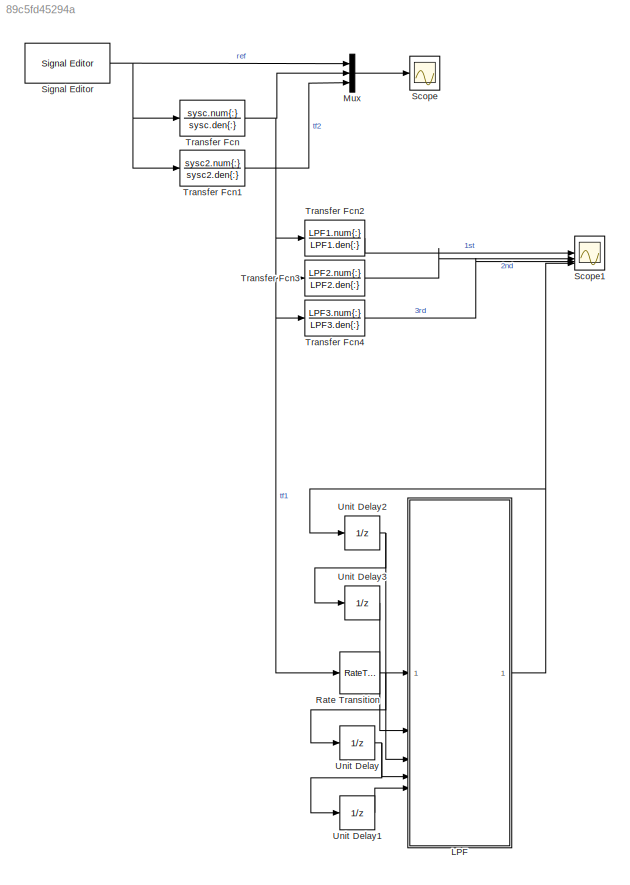
MODEL slx_89c5fd45294a
KIND model
CONFIG AbsTol = auto
CONFIG EnableMultiTasking = off
CONFIG FixedStep = auto
CONFIG MaxStep = auto
CONFIG MinStep = auto
CONFIG RelTol = 1e-3
CONFIG SampleTimeConstraint = Unconstrained
CONFIG SolverName = VariableStepAuto
CONFIG StartTime = 0.0
CONFIG StopTime = 10.0
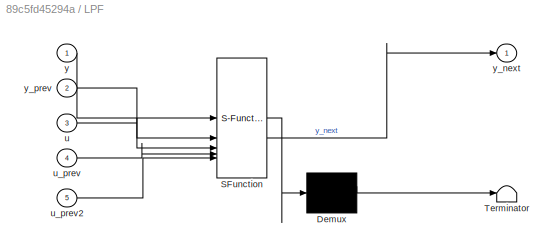
BLOCK [SubSystem] LPF
  ErrorFcn = Stateflow.Translate.translate
  PermitHierarchicalResolution = ExplicitOnly
  SFBlockType = MATLAB Function
  TreatAsAtomicUnit = on
BLOCK [Demux] LPF/ Demux 
  Outputs = 1
BLOCK [S-Function] LPF/ SFunction 
  EnableBusSupport = on
  FunctionName = sf_sfun
  Parameters = A,B,Ts
  PortCounts = [5 2]
  SFcnIsStateOwnerBlock = off
  SFunctionDeploymentMode = off
  Tag = Stateflow S-Function 2
BLOCK [Terminator] LPF/ Terminator 
BLOCK [Inport] LPF/u
  Port = 3
BLOCK [Inport] LPF/u_prev
  Port = 4
BLOCK [Inport] LPF/u_prev2
  Port = 5
BLOCK [Inport] LPF/y
BLOCK [Outport] LPF/y_next
BLOCK [Inport] LPF/y_prev
  Port = 2
BLOCK [Mux] Mux
  DisplayOption = bar
  Inputs = 3
BLOCK [RateTransition] Rate Transition
  OutPortSampleTime = Ts
BLOCK [Scope] Scope
  Floating = off
  NumInputPorts = 1
  ScopeSpecificationString = Simulink.scopes.TimeScopeBlockCfg('CurrentConfiguration', extmgr.ConfigurationSet(extmgr.Configuration('Core','General UI',true),extmgr.Configuration('Core','Source UI',true),extmgr.Configuration('Sources','WiredSimulink',true,'DataLogging',true,'DataLoggingVariableName','data','DataLoggingSaveFormat','Array'),extmgr.Configuration('Visuals','Time Domain',true,'SerializedDisplays',{struct('MinYLimR...<+1480ch>
BLOCK [Scope] Scope1
  Floating = off
  NumInputPorts = 4
  ScopeSpecificationString = Simulink.scopes.TimeScopeBlockCfg('CurrentConfiguration', extmgr.ConfigurationSet(extmgr.Configuration('Core','General UI',true),extmgr.Configuration('Core','Source UI',true),extmgr.Configuration('Sources','WiredSimulink',true,'DataLoggingVariableName','ScopeData1'),extmgr.Configuration('Visuals','Time Domain',true,'SerializedDisplays',{struct('MinYLimReal','-51737233655622379307422858138877952.00...<+1702ch>
BLOCK [Reference] Signal Editor  REF=SignalEditorBlockLib/Signal Editor
  LibrarySourceBlock = simulink/Sources/Signal Editor
  SourceBlock = SignalEditorBlockLib/Signal Editor
  SourceType = SignalEditor
  UserDataPersistent = on
BLOCK [TransferFcn] Transfer Fcn
  Denominator = sysc.den{:}
  Numerator = sysc.num{:}
BLOCK [TransferFcn] Transfer Fcn1
  Denominator = sysc2.den{:}
  Numerator = sysc2.num{:}
BLOCK [TransferFcn] Transfer Fcn2
  Denominator = LPF1.den{:}
  Numerator = LPF1.num{:}
BLOCK [TransferFcn] Transfer Fcn3
  Denominator = LPF2.den{:}
  Numerator = LPF2.num{:}
BLOCK [TransferFcn] Transfer Fcn4
  Denominator = LPF3.den{:}
  Numerator = LPF3.num{:}
BLOCK [UnitDelay] Unit Delay
  HasFrameUpgradeWarning = on
  SampleTime = -1
BLOCK [UnitDelay] Unit Delay1
  HasFrameUpgradeWarning = on
  SampleTime = -1
BLOCK [UnitDelay] Unit Delay2
  HasFrameUpgradeWarning = on
  SampleTime = -1
BLOCK [UnitDelay] Unit Delay3
  HasFrameUpgradeWarning = on
  SampleTime = -1
NET LPF:1 -> Scope1:4, Unit Delay2:1
LINE Mux:1 -> Scope:1
NET Rate Transition:1 -> LPF:3, Unit Delay:1
NET Signal Editor:1 -> Mux:1, Transfer Fcn1:1, Transfer Fcn:1
LINE Transfer Fcn1:1 -> Mux:3
LINE Transfer Fcn2:1 -> Scope1:1
LINE Transfer Fcn3:1 -> Scope1:2
LINE Transfer Fcn4:1 -> Scope1:3
NET Transfer Fcn:1 -> Mux:2, Rate Transition:1, Transfer Fcn2:1, Transfer Fcn3:1, Transfer Fcn4:1
LINE Unit Delay1:1 -> LPF:5
NET Unit Delay2:1 -> LPF:1, Unit Delay3:1
LINE Unit Delay3:1 -> LPF:2
NET Unit Delay:1 -> LPF:4, Unit Delay1:1
note: NET lines group one-source signal fan-out (src -> all destinations, sorted); 1:1 wires keep LINE
CHART LPF states=1 transitions=1
  STATE_LABEL 'eML_blk_kernel()'
  STATE_LABEL 'SCRIPT:\nfunction y_next = LPF(y,y_prev,u,u_prev,u_prev2,A,B, Ts)\n    y_next = (2-A*Ts)*y-(1-A*Ts+B*Ts*Ts)*y_prev+u-2*u_prev+u_prev2;\nend'
CHART  states=0 transitions=0
